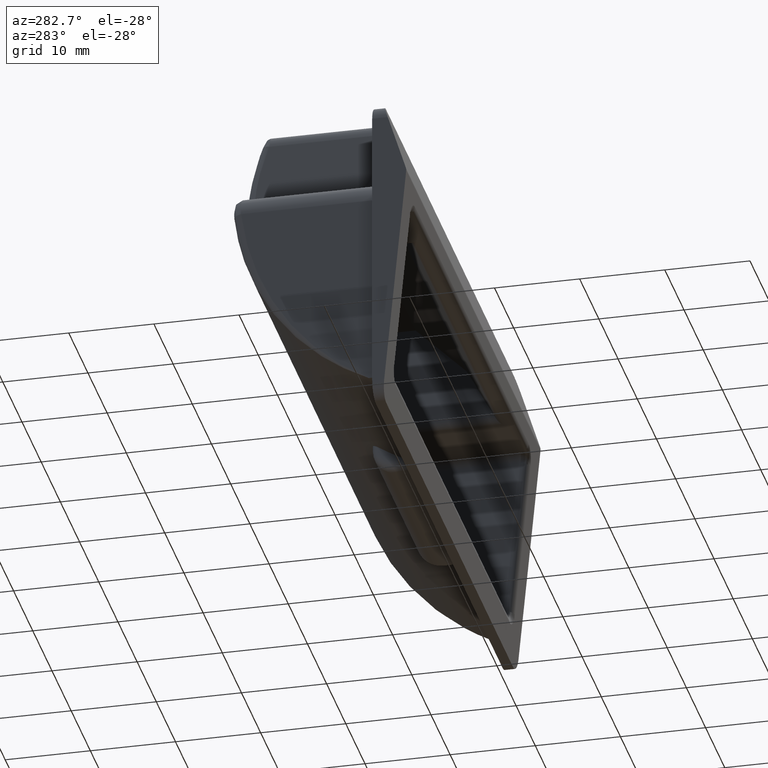
[diagram: clean part render]
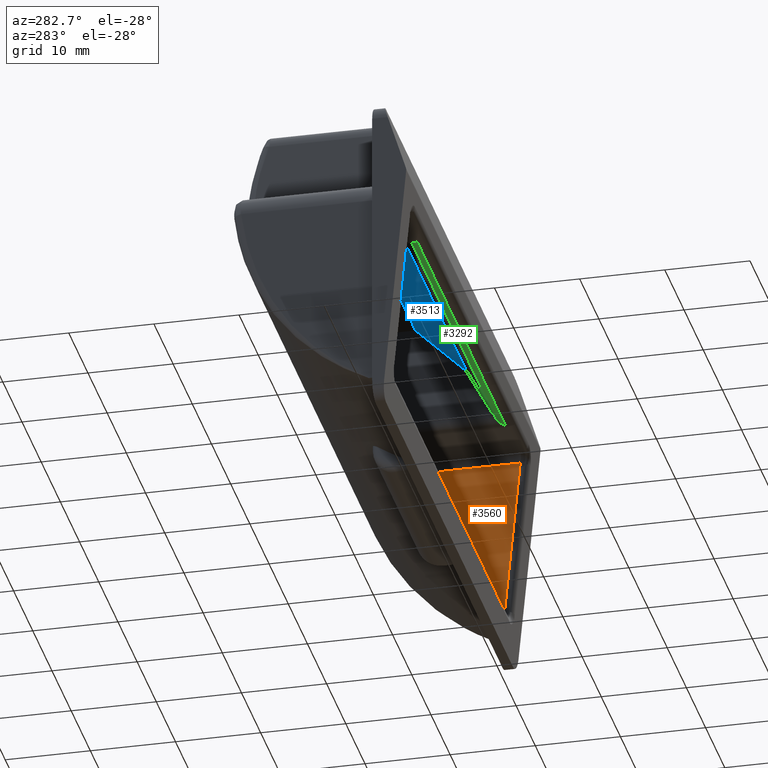
[diagram: same view with three faces highlighted in distinct colors, each labeled with its STEP entity id]
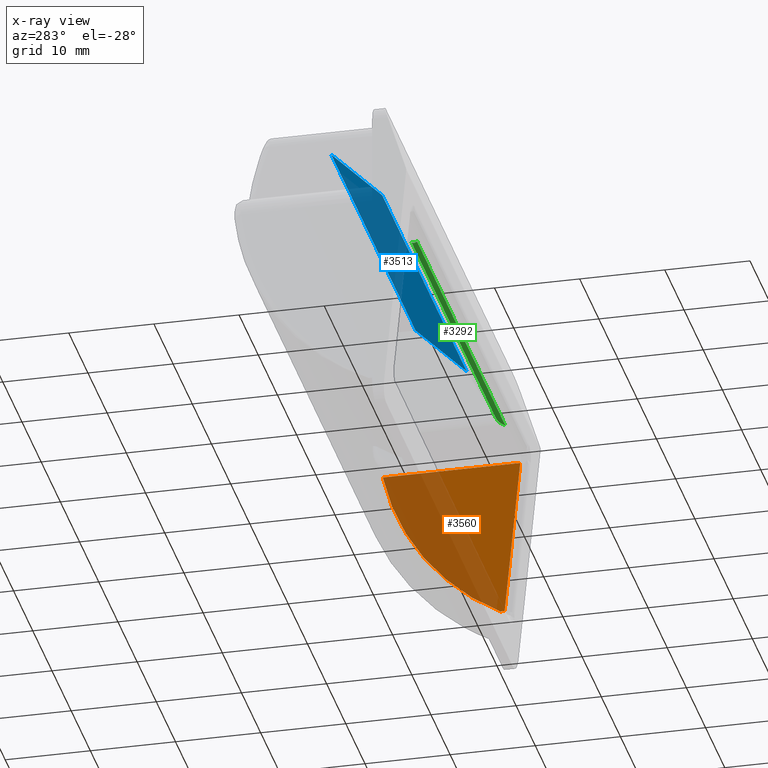
[diagram: x-ray of the same camera — body ghosted, the three highlighted faces saturated]
A machine part, auxiliary view with three faces highlighted in distinct colors.
The next image is the same camera in x-ray (body ghosted, the three faces saturated) — at least one of them is partly hidden behind the body in this view.
Their STEP definitions:

[orange] entity #3560 — the highlighted planar face has unit normal (-1, 0, 0).
#181 = CARTESIAN_POINT ( 'NONE',  ( 30.50000000000000000, -1.697504835972865100, -13.75000000000000000 ) ) ;
#192 = PLANE ( 'NONE',  #195 ) ;
#195 = AXIS2_PLACEMENT_3D ( 'NONE', #1932, #2222, #496 ) ;
#281 = LINE ( 'NONE', #3046, #947 ) ;
#292 = EDGE_CURVE ( 'NONE', #3379, #964, #650, .T. ) ;
#381 = AXIS2_PLACEMENT_3D ( 'NONE', #3423, #897, #608 ) ;
#494 = CARTESIAN_POINT ( 'NONE',  ( 30.50000000000000000, -2.623889013683059700, 5.250000000000000000 ) ) ;
#496 = DIRECTION ( 'NONE',  ( 0.0000000000000000000, 1.000000000000000000, 0.0000000000000000000 ) ) ;
#503 = ORIENTED_EDGE ( 'NONE', *, *, #292, .T. ) ;
#608 = DIRECTION ( 'NONE',  ( 0.0000000000000000000, 0.0000000000000000000, 1.000000000000000000 ) ) ;
#650 = LINE ( 'NONE', #3049, #2818 ) ;
#655 = DIRECTION ( 'NONE',  ( -0.0000000000000000000, 1.000000000000000000, -0.0000000000000000000 ) ) ;
#897 = DIRECTION ( 'NONE',  ( -1.000000000000000000, 0.0000000000000000000, 0.0000000000000000000 ) ) ;
#947 = VECTOR ( 'NONE', #1923, 1000.000000000000000 ) ;
#955 = CARTESIAN_POINT ( 'NONE',  ( 30.50000000000000000, -0.7894062550623149900, -13.75000000000000000 ) ) ;
#964 = VERTEX_POINT ( 'NONE', #1176 ) ;
#1118 = EDGE_CURVE ( 'NONE', #964, #2820, #2220, .T. ) ;
#1176 = CARTESIAN_POINT ( 'NONE',  ( 30.50000000000000000, 13.51908140067302200, 5.250000000000000000 ) ) ;
#1361 = CARTESIAN_POINT ( 'NONE',  ( 30.50000000000000000, -0.2615143702929420000, -13.75000000000000000 ) ) ;
#1403 = VECTOR ( 'NONE', #1663, 1000.000000000000000 ) ;
#1663 = DIRECTION ( 'NONE',  ( -0.0000000000000000000, -1.000000000000000000, -0.0000000000000000000 ) ) ;
#1923 = DIRECTION ( 'NONE',  ( -0.0000000000000000000, -0.09610480746658905900, 0.9953712201896385300 ) ) ;
#1932 = CARTESIAN_POINT ( 'NONE',  ( 30.50000000000000000, 0.0000000000000000000, 0.0000000000000000000 ) ) ;
#1938 = ORIENTED_EDGE ( 'NONE', *, *, #2290, .T. ) ;
#2148 = LINE ( 'NONE', #181, #1403 ) ;
#2199 = EDGE_LOOP ( 'NONE', ( #1938, #503, #2215, #3667 ) ) ;
#2215 = ORIENTED_EDGE ( 'NONE', *, *, #1118, .T. ) ;
#2220 = CIRCLE ( 'NONE', #381, 28.32816273254529800 ) ;
#2222 = DIRECTION ( 'NONE',  ( -1.000000000000000000, 0.0000000000000000000, 0.0000000000000000000 ) ) ;
#2290 = EDGE_CURVE ( 'NONE', #3651, #3379, #281, .T. ) ;
#2357 = FACE_OUTER_BOUND ( 'NONE', #2199, .T. ) ;
#2818 = VECTOR ( 'NONE', #655, 1000.000000000000000 ) ;
#2820 = VERTEX_POINT ( 'NONE', #1361 ) ;
#2822 = EDGE_CURVE ( 'NONE', #2820, #3651, #2148, .T. ) ;
#3046 = CARTESIAN_POINT ( 'NONE',  ( 30.50000000000000000, -2.097439635864755100, -0.2025114131179830100 ) ) ;
#3049 = CARTESIAN_POINT ( 'NONE',  ( 30.50000000000000000, 14.71671297598576100, 5.250000000000000000 ) ) ;
#3379 = VERTEX_POINT ( 'NONE', #494 ) ;
#3423 = CARTESIAN_POINT ( 'NONE',  ( 30.50000000000000000, -14.24241057784380100, 10.88776258176182000 ) ) ;
#3560 = ADVANCED_FACE ( 'NONE', ( #2357 ), #192, .T. ) ;
#3651 = VERTEX_POINT ( 'NONE', #955 ) ;
#3667 = ORIENTED_EDGE ( 'NONE', *, *, #2822, .T. ) ;

[blue] entity #3513 — the highlighted planar face has unit normal (0, 0.7071, -0.7071).
#420 = VERTEX_POINT ( 'NONE', #2496 ) ;
#459 = LINE ( 'NONE', #3610, #1903 ) ;
#529 = ORIENTED_EDGE ( 'NONE', *, *, #805, .F. ) ;
#586 = VECTOR ( 'NONE', #1862, 1000.000000000000000 ) ;
#675 = EDGE_LOOP ( 'NONE', ( #1393, #529, #1875, #1111 ) ) ;
#704 = CARTESIAN_POINT ( 'NONE',  ( 978.0000000000000000, 1.749999999999800200, 13.25000000000000000 ) ) ;
#763 = VERTEX_POINT ( 'NONE', #2983 ) ;
#805 = EDGE_CURVE ( 'NONE', #763, #3575, #3506, .T. ) ;
#835 = EDGE_CURVE ( 'NONE', #3575, #420, #459, .T. ) ;
#852 = AXIS2_PLACEMENT_3D ( 'NONE', #2013, #1461, #3441 ) ;
#872 = PLANE ( 'NONE',  #852 ) ;
#1111 = ORIENTED_EDGE ( 'NONE', *, *, #2532, .T. ) ;
#1159 = DIRECTION ( 'NONE',  ( -0.0000000000000000000, -0.7071067811865474600, -0.7071067811865474600 ) ) ;
#1356 = LINE ( 'NONE', #704, #586 ) ;
#1393 = ORIENTED_EDGE ( 'NONE', *, *, #835, .F. ) ;
#1461 = DIRECTION ( 'NONE',  ( 0.0000000000000000000, 0.7071067811865475700, -0.7071067811865475700 ) ) ;
#1499 = VERTEX_POINT ( 'NONE', #2687 ) ;
#1607 = FACE_OUTER_BOUND ( 'NONE', #675, .T. ) ;
#1862 = DIRECTION ( 'NONE',  ( -1.000000000000000000, 0.0000000000000000000, 0.0000000000000000000 ) ) ;
#1875 = ORIENTED_EDGE ( 'NONE', *, *, #3511, .T. ) ;
#1890 = DIRECTION ( 'NONE',  ( -0.0000000000000000000, -0.7071067811865474600, -0.7071067811865474600 ) ) ;
#1903 = VECTOR ( 'NONE', #1890, 1000.000000000000100 ) ;
#2013 = CARTESIAN_POINT ( 'NONE',  ( 978.0000000000000000, 7.749999999999799300, 19.25000000000000000 ) ) ;
#2432 = VECTOR ( 'NONE', #1159, 1000.000000000000100 ) ;
#2493 = CARTESIAN_POINT ( 'NONE',  ( -22.00000000000000000, 7.749999999999799300, 19.25000000000000000 ) ) ;
#2496 = CARTESIAN_POINT ( 'NONE',  ( -22.00000000000000000, 1.749999999999800200, 13.25000000000000000 ) ) ;
#2532 = EDGE_CURVE ( 'NONE', #1499, #420, #1356, .T. ) ;
#2687 = CARTESIAN_POINT ( 'NONE',  ( 22.00000000000000000, 1.749999999999800200, 13.25000000000000000 ) ) ;
#2847 = CARTESIAN_POINT ( 'NONE',  ( 22.00000000000000000, 7.749999999999799300, 19.25000000000000000 ) ) ;
#2983 = CARTESIAN_POINT ( 'NONE',  ( 22.00000000000000000, 7.749999999999799300, 19.25000000000000000 ) ) ;
#3013 = CARTESIAN_POINT ( 'NONE',  ( 978.0000000000000000, 7.749999999999799300, 19.25000000000000000 ) ) ;
#3115 = LINE ( 'NONE', #2847, #2432 ) ;
#3416 = VECTOR ( 'NONE', #3596, 1000.000000000000000 ) ;
#3441 = DIRECTION ( 'NONE',  ( 0.0000000000000000000, 0.7071067811865475700, 0.7071067811865475700 ) ) ;
#3506 = LINE ( 'NONE', #3013, #3416 ) ;
#3511 = EDGE_CURVE ( 'NONE', #763, #1499, #3115, .T. ) ;
#3513 = ADVANCED_FACE ( 'NONE', ( #1607 ), #872, .T. ) ;
#3575 = VERTEX_POINT ( 'NONE', #2493 ) ;
#3596 = DIRECTION ( 'NONE',  ( -1.000000000000000000, 0.0000000000000000000, 0.0000000000000000000 ) ) ;
#3610 = CARTESIAN_POINT ( 'NONE',  ( -22.00000000000000000, 7.749999999999799300, 19.25000000000000000 ) ) ;

[green] entity #3292 — the highlighted cylindrical surface (edge-blend (fillet) strip) has radius 1 mm, axis along (-1, 0, 0).
#9 = VERTEX_POINT ( 'NONE', #1196 ) ;
#155 = ORIENTED_EDGE ( 'NONE', *, *, #1975, .T. ) ;
#383 = EDGE_CURVE ( 'NONE', #929, #9, #462, .T. ) ;
#387 = CARTESIAN_POINT ( 'NONE',  ( -22.11636003419380400, -1.676941947625150100, 6.781832924235230200 ) ) ;
#394 = EDGE_CURVE ( 'NONE', #3038, #9, #1700, .T. ) ;
#462 = LINE ( 'NONE', #997, #3418 ) ;
#666 = CARTESIAN_POINT ( 'NONE',  ( -22.61993225182838100, -2.180514165259651800, 6.249999999999998200 ) ) ;
#673 = CARTESIAN_POINT ( 'NONE',  ( 22.11636003419395300, -1.676941947625150100, 6.781832924235230200 ) ) ;
#929 = VERTEX_POINT ( 'NONE', #673 ) ;
#997 = CARTESIAN_POINT ( 'NONE',  ( 978.0000000000000000, -1.676941947625150100, 6.781832924235230200 ) ) ;
#1055 = CARTESIAN_POINT ( 'NONE',  ( 978.0000000000000000, -2.560581913431274600, 7.250000000000000000 ) ) ;
#1066 = DIRECTION ( 'NONE',  ( -1.000000000000000000, 0.0000000000000000000, 0.0000000000000000000 ) ) ;
#1132 = CARTESIAN_POINT ( 'NONE',  ( 978.0000000000000000, -2.560581913431274600, 6.250000000000000000 ) ) ;
#1196 = CARTESIAN_POINT ( 'NONE',  ( -22.11636003419380400, -1.676941947625150100, 6.781832924235230200 ) ) ;
#1221 = CARTESIAN_POINT ( 'NONE',  ( -23.00000000000000000, -2.560581913431274600, 6.250000000000000000 ) ) ;
#1263 = CARTESIAN_POINT ( 'NONE',  ( 22.61993225182838800, -2.180514165259665600, 6.249999999999998200 ) ) ;
#1366 = DIRECTION ( 'NONE',  ( 0.0000000000000000000, 0.0000000000000000000, 1.000000000000000000 ) ) ;
#1480 = FACE_OUTER_BOUND ( 'NONE', #2845, .T. ) ;
#1514 =( BOUNDED_CURVE ( )  B_SPLINE_CURVE ( 3, ( #3240, #2653, #1263, #3257 ),
 .UNSPECIFIED., .F., .F. ) 
 B_SPLINE_CURVE_WITH_KNOTS ( ( 4, 4 ),
 ( 0.4872153469368156200, 1.570796326794896600 ),
 .UNSPECIFIED. ) 
 CURVE ( )  GEOMETRIC_REPRESENTATION_ITEM ( )  RATIONAL_B_SPLINE_CURVE ( ( 1.000000000000000000, 0.9045245011309046600, 0.9045245011309046600, 1.000000000000000000 ) ) 
 REPRESENTATION_ITEM ( '' )  );
#1664 = DIRECTION ( 'NONE',  ( -1.000000000000000000, 0.0000000000000000000, 0.0000000000000000000 ) ) ;
#1700 =( BOUNDED_CURVE ( )  B_SPLINE_CURVE ( 3, ( #3248, #666, #2992, #387 ),
 .UNSPECIFIED., .F., .T. ) 
 B_SPLINE_CURVE_WITH_KNOTS ( ( 4, 4 ),
 ( 1.570796326794896600, 2.654377306653012500 ),
 .UNSPECIFIED. ) 
 CURVE ( )  GEOMETRIC_REPRESENTATION_ITEM ( )  RATIONAL_B_SPLINE_CURVE ( ( 1.000000000000000000, 0.9045245011308985500, 0.9045245011308985500, 1.000000000000000000 ) ) 
 REPRESENTATION_ITEM ( '' )  );
#1723 = DIRECTION ( 'NONE',  ( -1.000000000000000000, 0.0000000000000000000, 0.0000000000000000000 ) ) ;
#1975 = EDGE_CURVE ( 'NONE', #3354, #3038, #2807, .T. ) ;
#2068 = VECTOR ( 'NONE', #1723, 1000.000000000000000 ) ;
#2155 = ORIENTED_EDGE ( 'NONE', *, *, #2471, .T. ) ;
#2364 = ORIENTED_EDGE ( 'NONE', *, *, #383, .F. ) ;
#2463 = CARTESIAN_POINT ( 'NONE',  ( 23.00000000000000000, -2.560581913431274600, 6.250000000000000000 ) ) ;
#2471 = EDGE_CURVE ( 'NONE', #929, #3354, #1514, .T. ) ;
#2653 = CARTESIAN_POINT ( 'NONE',  ( 22.29429524044789400, -1.854877153879163500, 6.445989872236838300 ) ) ;
#2807 = LINE ( 'NONE', #1132, #2068 ) ;
#2845 = EDGE_LOOP ( 'NONE', ( #155, #3124, #2364, #2155 ) ) ;
#2992 = CARTESIAN_POINT ( 'NONE',  ( -22.29429524044786600, -1.854877153879141100, 6.445989872236852500 ) ) ;
#3038 = VERTEX_POINT ( 'NONE', #1221 ) ;
#3124 = ORIENTED_EDGE ( 'NONE', *, *, #394, .T. ) ;
#3240 = CARTESIAN_POINT ( 'NONE',  ( 22.11636003419395300, -1.676941947625150100, 6.781832924235230200 ) ) ;
#3248 = CARTESIAN_POINT ( 'NONE',  ( -23.00000000000000000, -2.560581913431274600, 6.250000000000000000 ) ) ;
#3257 = CARTESIAN_POINT ( 'NONE',  ( 23.00000000000000000, -2.560581913431274600, 6.250000000000000000 ) ) ;
#3292 = ADVANCED_FACE ( 'NONE', ( #1480 ), #3684, .T. ) ;
#3354 = VERTEX_POINT ( 'NONE', #2463 ) ;
#3418 = VECTOR ( 'NONE', #1664, 1000.000000000000000 ) ;
#3553 = AXIS2_PLACEMENT_3D ( 'NONE', #1055, #1066, #1366 ) ;
#3684 = CYLINDRICAL_SURFACE ( 'NONE', #3553, 1.000000000000000000 ) ;